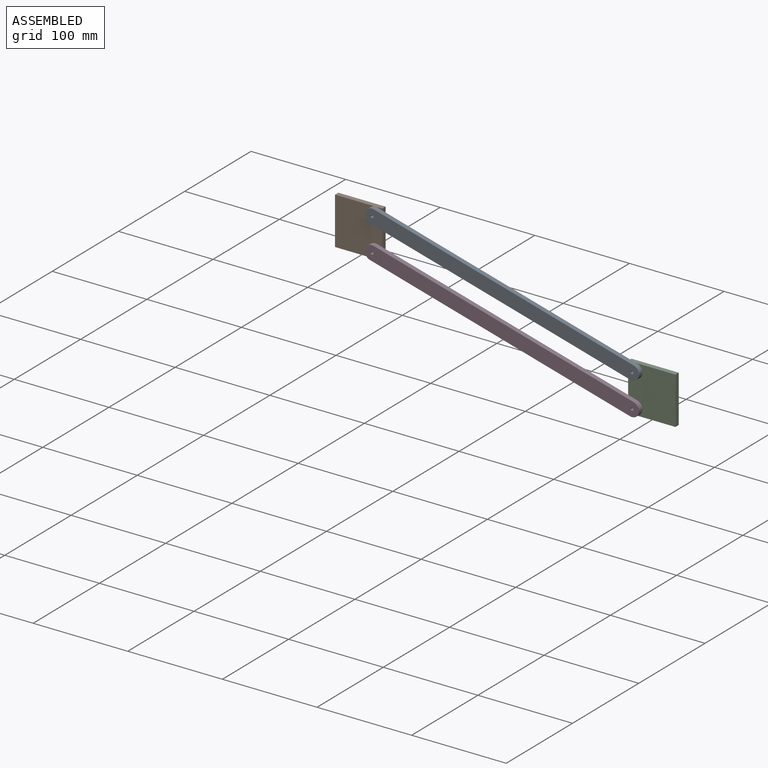
[diagram: assembled view]
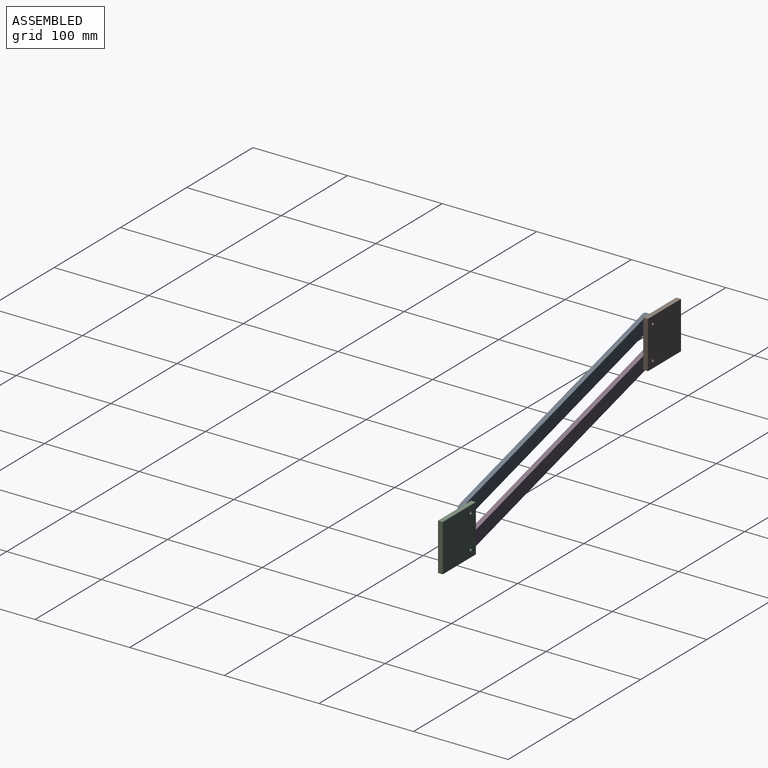
[diagram: assembled view, second angle]
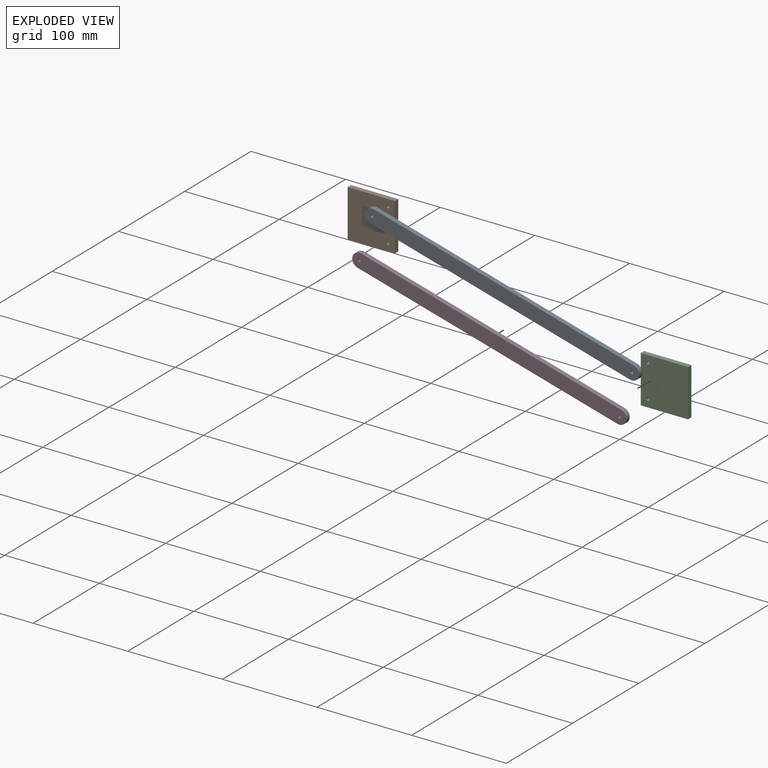
[diagram: exploded view]
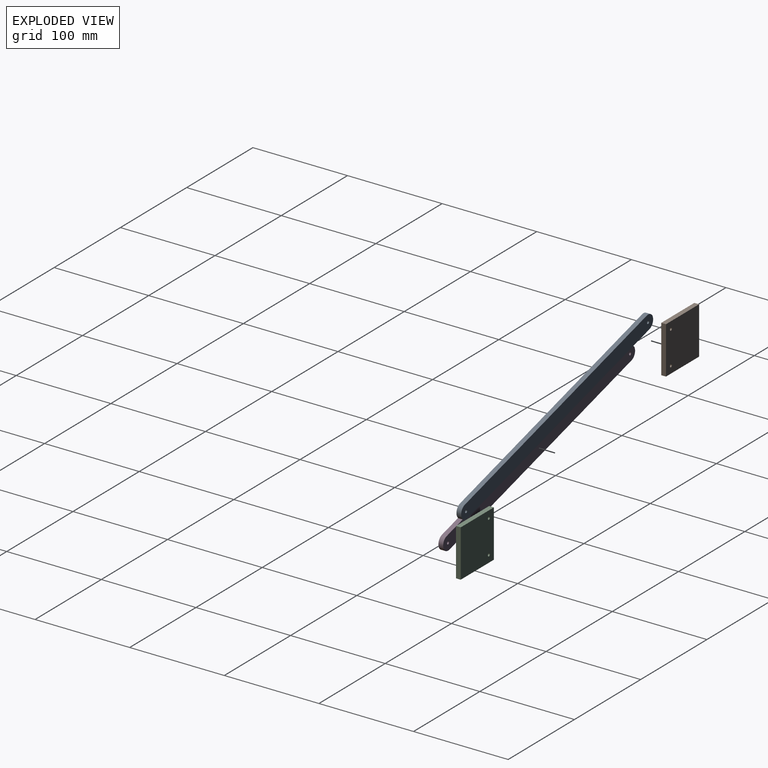
[diagram: exploded view, second angle]
ASSEMBLY  parts=4 mates=4
PART A: 8 faces, bbox 300x5x15 mm
  f0: plane 285x5mm, normal (0,0,-1), area 1425mm2, adj f4,f5,f6,f7
  f1: cylinder r=1.5mm len=5mm, axis (0,1,0), area 47.1mm2, adj f4,f5
  f2: cylinder r=1.5mm len=5mm, axis (0,1,0), area 47.1mm2, adj f4,f5
  f3: plane 285x5mm, normal (0,0,1), area 1425mm2, adj f4,f5,f6,f7
  f4: plane 300x15mm, normal (0,-1,0), area 4437.6mm2, adj f0,f1,f2,f3,f6,f7
  f5: plane 300x15mm, normal (0,1,0), area 4437.6mm2, adj f0,f1,f2,f3,f6,f7
  f6: cylinder r=7.5mm len=15mm, axis (0,1,0), area 117.8mm2, adj f0,f3,f4,f5
  f7: cylinder r=7.5mm len=15mm, axis (0,-1,0), area 117.8mm2, adj f0,f3,f4,f5
PART B: 8 faces, bbox 50x5x50 mm
  f0: plane 50x5mm, normal (1,0,0), area 250mm2, adj f1,f4,f6,f7
  f1: plane 50x5mm, normal (0,0,1), area 250mm2, adj f0,f2,f6,f7
  f2: plane 50x5mm, normal (-1,0,0), area 250mm2, adj f1,f4,f6,f7
  f3: cylinder r=1.5mm len=5mm, axis (0,1,0), area 47.1mm2, adj f6,f7
  f4: plane 50x5mm, normal (0,0,-1), area 250mm2, adj f0,f2,f6,f7
  f5: cylinder r=1.5mm len=5mm, axis (0,1,0), area 47.1mm2, adj f6,f7
  f6: plane 50x50mm, normal (0,-1,0), area 2485.9mm2, adj f0,f1,f2,f3,f4,f5
  f7: plane 50x50mm, normal (0,1,0), area 2485.9mm2, adj f0,f1,f2,f3,f4,f5
PART C: same geometry as B
PART D: same geometry as A
PLACE A rot(axis=(0,1,0),15.4deg) t=(152.09,38.18,28.19)mm
PLACE B rot(axis=(0,-1,0),180deg) t=(-2.79,43.18,48.54)mm fixed
PLACE C t=(306.97,43.18,-27.16)mm
PLACE D rot(axis=(0,1,0),15.4deg) t=(152.09,38.18,-6.81)mm
MATE revolute B.f5 <-> A.f6  axis (0,-1,0) through (14.71,38.18,66.04)mm
MATE revolute B.f3 <-> D.f6  axis (0,-1,0) through (14.71,38.18,31.04)mm
MATE revolute C.f3 <-> A.f7  axis (0,-1,0) through (289.47,38.18,-9.66)mm
MATE revolute C.f5 <-> D.f7  axis (0,-1,0) through (289.47,38.18,-44.66)mm
